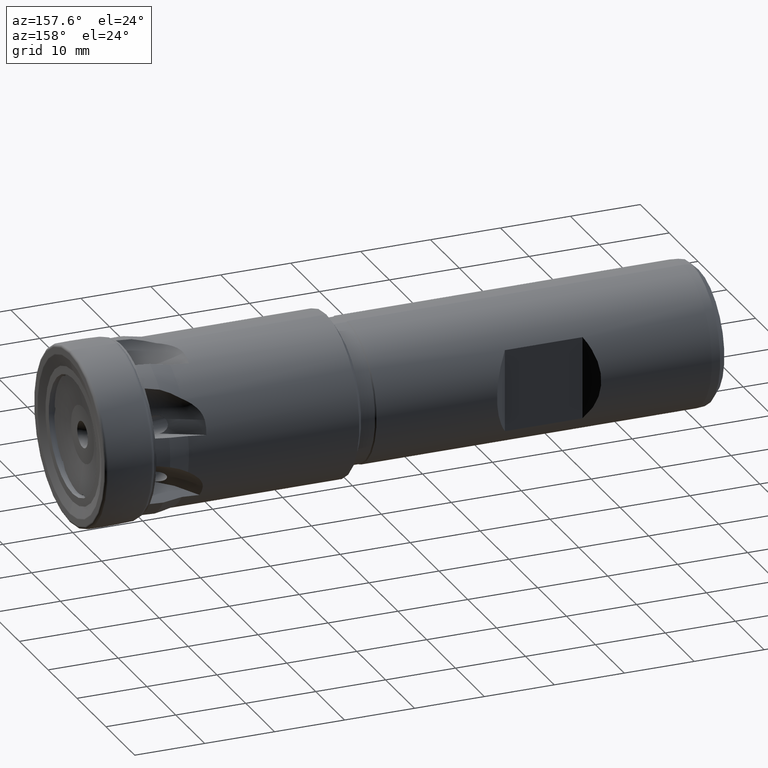
[diagram: clean part render]
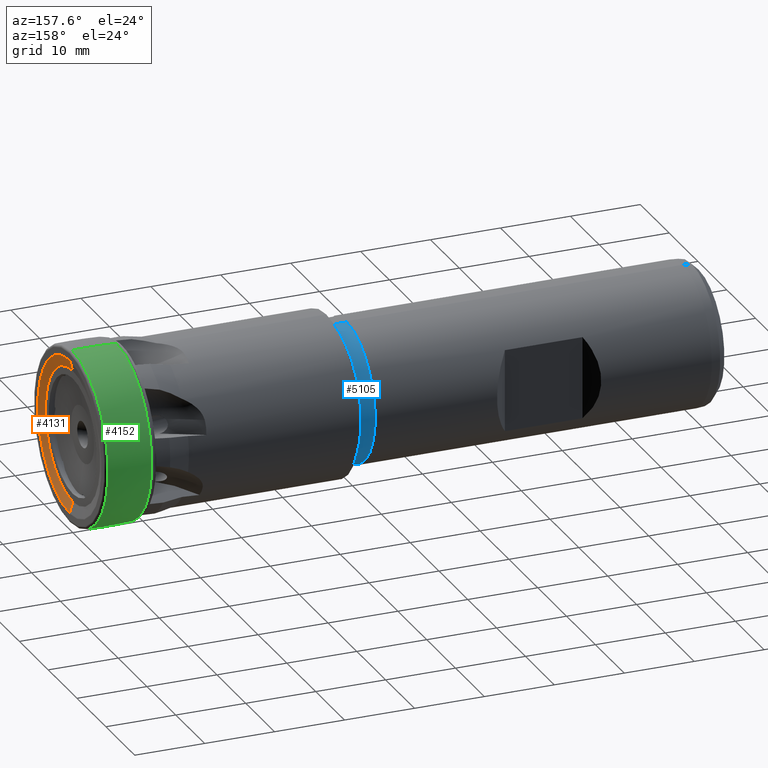
[diagram: same view with three faces highlighted in distinct colors, each labeled with its STEP entity id]
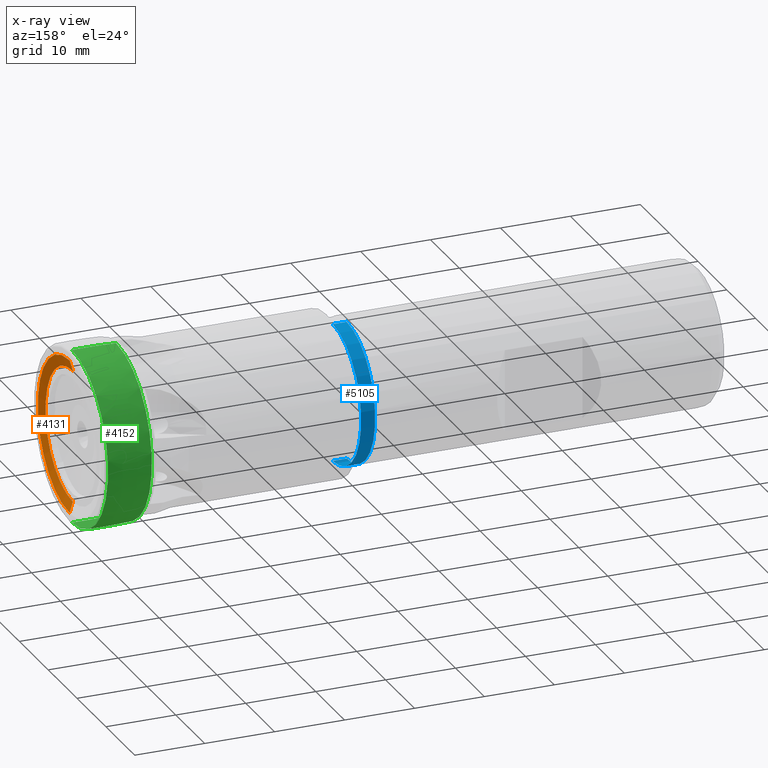
[diagram: x-ray of the same camera — body ghosted, the three highlighted faces saturated]
A machine part, auxiliary view with three faces highlighted in distinct colors.
The next image is the same camera in x-ray (body ghosted, the three faces saturated) — at least one of them is partly hidden behind the body in this view.
Their STEP definitions:

[orange] entity #4131 — the highlighted conical surface has half-angle 73.85 deg.
#231 = CARTESIAN_POINT ( 'NONE',  ( 1.734723475976807100E-015, 0.0000000000000000000, -9.472283386832376800 ) ) ;
#405 = CARTESIAN_POINT ( 'NONE',  ( 0.4509237223386964300, 0.0000000000000000000, -11.02945708101183300 ) ) ;
#423 = CARTESIAN_POINT ( 'NONE',  ( 1.734723475976807100E-015, 1.255369542044758600E-015, 9.472283386832376800 ) ) ;
#477 = CARTESIAN_POINT ( 'NONE',  ( 1.734723475976807100E-015, 0.0000000000000000000, 0.0000000000000000000 ) ) ;
#478 = DIRECTION ( 'NONE',  ( 1.000000000000000000, -0.0000000000000000000, -0.0000000000000000000 ) ) ;
#479 = DIRECTION ( 'NONE',  ( 0.0000000000000000000, 0.0000000000000000000, -1.000000000000000000 ) ) ;
#485 = LINE ( 'NONE', #487, #3481 ) ;
#487 = CARTESIAN_POINT ( 'NONE',  ( 0.4509237223386964300, 0.0000000000000000000, -11.02945708101183300 ) ) ;
#488 = DIRECTION ( 'NONE',  ( 0.2781507996735210200, 0.0000000000000000000, -0.9605374186573789600 ) ) ;
#489 = CARTESIAN_POINT ( 'NONE',  ( 0.4509237223386964300, 0.0000000000000000000, 0.0000000000000000000 ) ) ;
#490 = DIRECTION ( 'NONE',  ( 1.000000000000000000, -0.0000000000000000000, -0.0000000000000000000 ) ) ;
#491 = DIRECTION ( 'NONE',  ( 0.0000000000000000000, 0.0000000000000000000, -1.000000000000000000 ) ) ;
#758 = VECTOR ( 'NONE', #5556, 1000.000000000000100 ) ;
#776 = CIRCLE ( 'NONE', #3477, 9.472283386832376800 ) ;
#1335 = CARTESIAN_POINT ( 'NONE',  ( 0.4509237223386964300, 1.358793665195852900E-015, 11.02945708101183300 ) ) ;
#1419 = DIRECTION ( 'NONE',  ( 1.000000000000000000, -0.0000000000000000000, -0.0000000000000000000 ) ) ;
#1420 = CARTESIAN_POINT ( 'NONE',  ( 0.4509237223386964300, 0.0000000000000000000, 0.0000000000000000000 ) ) ;
#1421 = FACE_OUTER_BOUND ( 'NONE', #3138, .T. ) ;
#1424 = DIRECTION ( 'NONE',  ( 0.0000000000000000000, 0.0000000000000000000, -1.000000000000000000 ) ) ;
#3138 = EDGE_LOOP ( 'NONE', ( #4417, #3205, #3196, #4432 ) ) ;
#3154 = CONICAL_SURFACE ( 'NONE', #3155, 11.02945708101183300, 1.288927928314259800 ) ;
#3155 = AXIS2_PLACEMENT_3D ( 'NONE', #1420, #1419, #1424 ) ;
#3196 = ORIENTED_EDGE ( 'NONE', *, *, #3944, .T. ) ;
#3205 = ORIENTED_EDGE ( 'NONE', *, *, #4066, .T. ) ;
#3475 = AXIS2_PLACEMENT_3D ( 'NONE', #489, #490, #491 ) ;
#3477 = AXIS2_PLACEMENT_3D ( 'NONE', #477, #478, #479 ) ;
#3478 = CIRCLE ( 'NONE', #3475, 11.02945708101183300 ) ;
#3481 = VECTOR ( 'NONE', #488, 1000.000000000000100 ) ;
#3629 = VERTEX_POINT ( 'NONE', #1335 ) ;
#3706 = VERTEX_POINT ( 'NONE', #231 ) ;
#3897 = VERTEX_POINT ( 'NONE', #405 ) ;
#3916 = VERTEX_POINT ( 'NONE', #423 ) ;
#3940 = EDGE_CURVE ( 'NONE', #3916, #3706, #776, .T. ) ;
#3943 = EDGE_CURVE ( 'NONE', #3706, #3897, #485, .T. ) ;
#3944 = EDGE_CURVE ( 'NONE', #3629, #3897, #3478, .T. ) ;
#4066 = EDGE_CURVE ( 'NONE', #3916, #3629, #5554, .T. ) ;
#4131 = ADVANCED_FACE ( 'NONE', ( #1421 ), #3154, .F. ) ;
#4417 = ORIENTED_EDGE ( 'NONE', *, *, #3940, .F. ) ;
#4432 = ORIENTED_EDGE ( 'NONE', *, *, #3943, .F. ) ;
#5554 = LINE ( 'NONE', #5555, #758 ) ;
#5555 = CARTESIAN_POINT ( 'NONE',  ( 0.4509237223386964300, 1.350718931059425000E-015, 11.02945708101183300 ) ) ;
#5556 = DIRECTION ( 'NONE',  ( 0.2781507996735210200, 1.176319075220020500E-016, 0.9605374186573789600 ) ) ;

[blue] entity #5105 — the highlighted cylindrical surface (partial cylindrical patch) has radius 9.9 mm, axis along (1, -0, -0).
#171 = CARTESIAN_POINT ( 'NONE',  ( -39.15358983848621900, 1.212400331155879100E-015, 9.899999999999995000 ) ) ;
#394 = CARTESIAN_POINT ( 'NONE',  ( -39.15358983848621900, 0.0000000000000000000, -9.899999999999995000 ) ) ;
#395 = CARTESIAN_POINT ( 'NONE',  ( -37.15358983848621900, 0.0000000000000000000, -9.899999999999996800 ) ) ;
#486 = LINE ( 'NONE', #492, #6093 ) ;
#492 = CARTESIAN_POINT ( 'NONE',  ( 0.0000000000000000000, 0.0000000000000000000, -9.899999999999995000 ) ) ;
#500 = DIRECTION ( 'NONE',  ( 1.000000000000000000, -0.0000000000000000000, -0.0000000000000000000 ) ) ;
#689 = LINE ( 'NONE', #690, #5148 ) ;
#690 = CARTESIAN_POINT ( 'NONE',  ( 0.0000000000000000000, 1.212400331155879100E-015, 9.899999999999995000 ) ) ;
#691 = DIRECTION ( 'NONE',  ( 1.000000000000000000, -0.0000000000000000000, -0.0000000000000000000 ) ) ;
#761 = AXIS2_PLACEMENT_3D ( 'NONE', #5481, #5482, #5483 ) ;
#765 = CIRCLE ( 'NONE', #761, 9.899999999999995000 ) ;
#1325 = CARTESIAN_POINT ( 'NONE',  ( -37.15358983848621900, 1.308535104888946800E-015, 9.899999999999996800 ) ) ;
#1601 = CARTESIAN_POINT ( 'NONE',  ( -37.15358983848621900, 0.0000000000000000000, 0.0000000000000000000 ) ) ;
#1602 = DIRECTION ( 'NONE',  ( 1.000000000000000000, -0.0000000000000000000, -0.0000000000000000000 ) ) ;
#1603 = DIRECTION ( 'NONE',  ( 0.0000000000000000000, 0.0000000000000000000, -1.000000000000000000 ) ) ;
#2515 = DIRECTION ( 'NONE',  ( 1.000000000000000000, -0.0000000000000000000, -0.0000000000000000000 ) ) ;
#2517 = CYLINDRICAL_SURFACE ( 'NONE', #4675, 9.899999999999995000 ) ;
#2518 = FACE_OUTER_BOUND ( 'NONE', #3101, .T. ) ;
#2519 = CARTESIAN_POINT ( 'NONE',  ( 0.0000000000000000000, 0.0000000000000000000, 0.0000000000000000000 ) ) ;
#2521 = DIRECTION ( 'NONE',  ( 0.0000000000000000000, 0.0000000000000000000, -1.000000000000000000 ) ) ;
#3101 = EDGE_LOOP ( 'NONE', ( #4330, #4520, #4302, #4396 ) ) ;
#3622 = VERTEX_POINT ( 'NONE', #1325 ) ;
#3638 = VERTEX_POINT ( 'NONE', #171 ) ;
#3886 = VERTEX_POINT ( 'NONE', #394 ) ;
#3887 = VERTEX_POINT ( 'NONE', #395 ) ;
#3947 = EDGE_CURVE ( 'NONE', #3886, #3887, #486, .T. ) ;
#3985 = EDGE_CURVE ( 'NONE', #3638, #3622, #689, .T. ) ;
#4059 = EDGE_CURVE ( 'NONE', #3886, #3638, #765, .T. ) ;
#4172 = EDGE_CURVE ( 'NONE', #3887, #3622, #4450, .T. ) ;
#4302 = ORIENTED_EDGE ( 'NONE', *, *, #4172, .F. ) ;
#4330 = ORIENTED_EDGE ( 'NONE', *, *, #4059, .T. ) ;
#4396 = ORIENTED_EDGE ( 'NONE', *, *, #3947, .F. ) ;
#4450 = CIRCLE ( 'NONE', #4461, 9.899999999999996800 ) ;
#4461 = AXIS2_PLACEMENT_3D ( 'NONE', #1601, #1602, #1603 ) ;
#4520 = ORIENTED_EDGE ( 'NONE', *, *, #3985, .T. ) ;
#4675 = AXIS2_PLACEMENT_3D ( 'NONE', #2519, #2515, #2521 ) ;
#5105 = ADVANCED_FACE ( 'NONE', ( #2518 ), #2517, .T. ) ;
#5148 = VECTOR ( 'NONE', #691, 1000.000000000000000 ) ;
#5481 = CARTESIAN_POINT ( 'NONE',  ( -39.15358983848621900, 0.0000000000000000000, 0.0000000000000000000 ) ) ;
#5482 = DIRECTION ( 'NONE',  ( 1.000000000000000000, -0.0000000000000000000, -0.0000000000000000000 ) ) ;
#5483 = DIRECTION ( 'NONE',  ( 0.0000000000000000000, 0.0000000000000000000, -1.000000000000000000 ) ) ;
#6093 = VECTOR ( 'NONE', #500, 1000.000000000000000 ) ;

[green] entity #4152 — the highlighted toroidal blend (fillet) surface has major radius 73.5601 mm and minor (blend) radius 86.0601 mm.
#192 = CARTESIAN_POINT ( 'NONE',  ( 0.1118451480246750500, 1.528024169092815100E-015, 12.47726422146111800 ) ) ;
#320 = CARTESIAN_POINT ( 'NONE',  ( -6.198636738067864200, 0.0000000000000000000, -12.39088049173887800 ) ) ;
#504 = CARTESIAN_POINT ( 'NONE',  ( -1.866227419194484800, -9.008517460899196900E-015, -73.56012743569229400 ) ) ;
#505 = DIRECTION ( 'NONE',  ( 0.0000000000000000000, 1.000000000000000000, -1.224646799147353200E-016 ) ) ;
#506 = DIRECTION ( 'NONE',  ( 0.0000000000000000000, 1.224646799147353200E-016, 1.000000000000000000 ) ) ;
#528 = CARTESIAN_POINT ( 'NONE',  ( -1.866227419194484800, 0.0000000000000000000, 73.56012743569229400 ) ) ;
#529 = DIRECTION ( 'NONE',  ( -0.0000000000000000000, -1.000000000000000000, -0.0000000000000000000 ) ) ;
#530 = DIRECTION ( 'NONE',  ( 0.0000000000000000000, 0.0000000000000000000, -1.000000000000000000 ) ) ;
#1326 = CARTESIAN_POINT ( 'NONE',  ( -6.198636738067864200, 1.517445213282540100E-015, 12.39088049173887800 ) ) ;
#1509 = CARTESIAN_POINT ( 'NONE',  ( -1.866227419194484800, 0.0000000000000000000, 0.0000000000000000000 ) ) ;
#1511 = FACE_OUTER_BOUND ( 'NONE', #3123, .T. ) ;
#1514 = DIRECTION ( 'NONE',  ( 1.000000000000000000, -0.0000000000000000000, -0.0000000000000000000 ) ) ;
#1516 = DIRECTION ( 'NONE',  ( 0.0000000000000000000, 0.0000000000000000000, -1.000000000000000000 ) ) ;
#1578 = CARTESIAN_POINT ( 'NONE',  ( 0.1118451480246751600, 0.0000000000000000000, 0.0000000000000000000 ) ) ;
#1579 = DIRECTION ( 'NONE',  ( 1.000000000000000000, -0.0000000000000000000, -0.0000000000000000000 ) ) ;
#1580 = DIRECTION ( 'NONE',  ( 0.0000000000000000000, 0.0000000000000000000, -1.000000000000000000 ) ) ;
#2710 = CARTESIAN_POINT ( 'NONE',  ( 0.1118451480246750500, 0.0000000000000000000, -12.47726422146111800 ) ) ;
#3123 = EDGE_LOOP ( 'NONE', ( #5917, #5916, #5841, #5923 ) ) ;
#3624 = VERTEX_POINT ( 'NONE', #1326 ) ;
#3661 = VERTEX_POINT ( 'NONE', #192 ) ;
#3799 = VERTEX_POINT ( 'NONE', #320 ) ;
#3948 = EDGE_CURVE ( 'NONE', #3624, #3661, #6091, .T. ) ;
#3954 = EDGE_CURVE ( 'NONE', #3799, #5886, #4108, .T. ) ;
#4082 = EDGE_CURVE ( 'NONE', #3799, #3624, #6010, .T. ) ;
#4104 = AXIS2_PLACEMENT_3D ( 'NONE', #1509, #1514, #1516 ) ;
#4108 = CIRCLE ( 'NONE', #4109, 86.06012743569229400 ) ;
#4109 = AXIS2_PLACEMENT_3D ( 'NONE', #528, #529, #530 ) ;
#4152 = ADVANCED_FACE ( 'NONE', ( #1511 ), #6018, .T. ) ;
#4165 = EDGE_CURVE ( 'NONE', #5886, #3661, #6016, .T. ) ;
#5692 = CARTESIAN_POINT ( 'NONE',  ( -6.198636738067864200, 0.0000000000000000000, 0.0000000000000000000 ) ) ;
#5693 = DIRECTION ( 'NONE',  ( 1.000000000000000000, -0.0000000000000000000, -0.0000000000000000000 ) ) ;
#5694 = DIRECTION ( 'NONE',  ( 0.0000000000000000000, 0.0000000000000000000, -1.000000000000000000 ) ) ;
#5841 = ORIENTED_EDGE ( 'NONE', *, *, #4165, .F. ) ;
#5886 = VERTEX_POINT ( 'NONE', #2710 ) ;
#5916 = ORIENTED_EDGE ( 'NONE', *, *, #3948, .T. ) ;
#5917 = ORIENTED_EDGE ( 'NONE', *, *, #4082, .T. ) ;
#5923 = ORIENTED_EDGE ( 'NONE', *, *, #3954, .F. ) ;
#6005 = AXIS2_PLACEMENT_3D ( 'NONE', #5692, #5693, #5694 ) ;
#6010 = CIRCLE ( 'NONE', #6005, 12.39088049173887800 ) ;
#6016 = CIRCLE ( 'NONE', #6113, 12.47726422146112300 ) ;
#6018 = TOROIDAL_SURFACE ( 'NONE', #4104, -73.56012743569229400, 86.06012743569229400 ) ;
#6090 = AXIS2_PLACEMENT_3D ( 'NONE', #504, #505, #506 ) ;
#6091 = CIRCLE ( 'NONE', #6090, 86.06012743569229400 ) ;
#6113 = AXIS2_PLACEMENT_3D ( 'NONE', #1578, #1579, #1580 ) ;